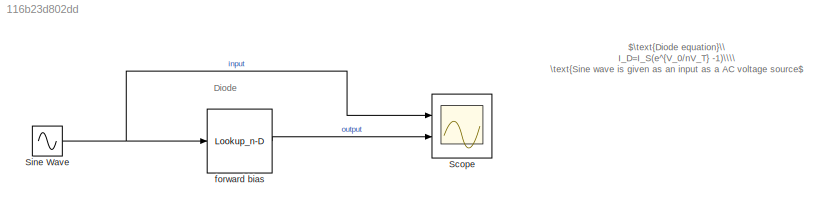
MODEL slx_116b23d802dd
KIND model
CONFIG AbsTol = auto
CONFIG EnableMultiTasking = off
CONFIG FixedStep = auto
CONFIG MaxStep = auto
CONFIG MinStep = auto
CONFIG RelTol = 1e-3
CONFIG SampleTimeConstraint = Unconstrained
CONFIG SolverName = VariableStepAuto
CONFIG StartTime = 0.0
CONFIG StopTime = 10.0
BLOCK [Scope] Scope
  Floating = off
  NumInputPorts = 2
  Ports = [2]
  ScopeSpecificationString = Simulink.scopes.TimeScopeBlockCfg('CurrentConfiguration', extmgr.ConfigurationSet(extmgr.Configuration('Core','General UI',true),extmgr.Configuration('Core','Source UI',true),extmgr.Configuration('Sources','WiredSimulink',true),extmgr.Configuration('Visuals','Time Domain',true,'SerializedDisplays',{struct('MinYLimReal','-1.24563','MaxYLimReal','1.24904','YLabelReal','','MinYLimMag','0.00000','MaxY...<+1983ch>
BLOCK [Sin] Sine Wave
  Ports = [0, 1]
  SampleTime = 0
BLOCK [Lookup_n-D] forward bias
  BreakpointsForDimension1 = [0.283 0.347 0.370 0.395 0.425 0.435 0.445 0.467 0.485 0.496 0.503 0.517 0.525 0.527 0.538 0.544 0.555 0.563 0.573 0.575 0.585 0.592 0.598 0.605 0.618 0.623 0.630 0.646 0.653 0.658 0.665 0.672 0.677 0.680]
  InputPortMap = u0
  InternalRulePriority = Speed
  NumberOfTableDimensions = 1
  Ports = [1, 1]
  RndMeth = Simplest
  Table = [0 0.001 0.001 0.005 0.009 0.012 0.018 0.047 0.060 0.082 0.101 0.145 0.175 0.181 0.246 0.306 0.412 0.509 0.646 0.693 0.822 0.979 1.112 1.335 1.805 2.007 2.392 3.4 3.9 4.3 5.3 6.7 7.6 8.0]
ANNOTATION (root): $\text{Diode equation}\\ I_D=I_S(e^{V_0/nV_T} -1)\\\\ \text{Sine wave is given as an input as a AC voltage source$
ANNOTATION (root): Diode
NET Sine Wave:1 -> Scope:1, forward bias:1
LINE forward bias:1 -> Scope:2
note: NET lines group one-source signal fan-out (src -> all destinations, sorted); 1:1 wires keep LINE
